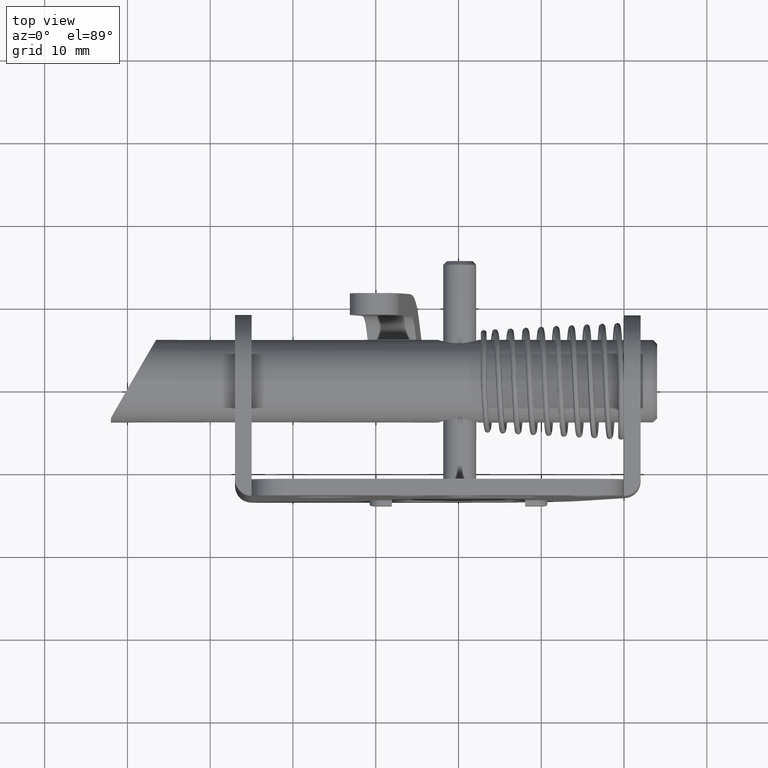
[diagram: clean part render]
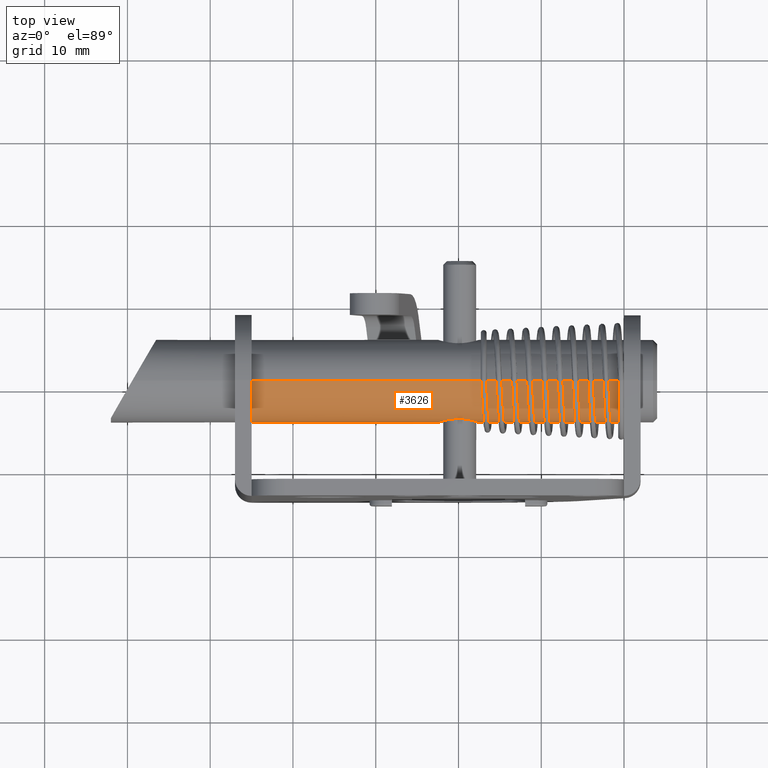
[diagram: same view with one face highlighted and labeled with its STEP entity id]
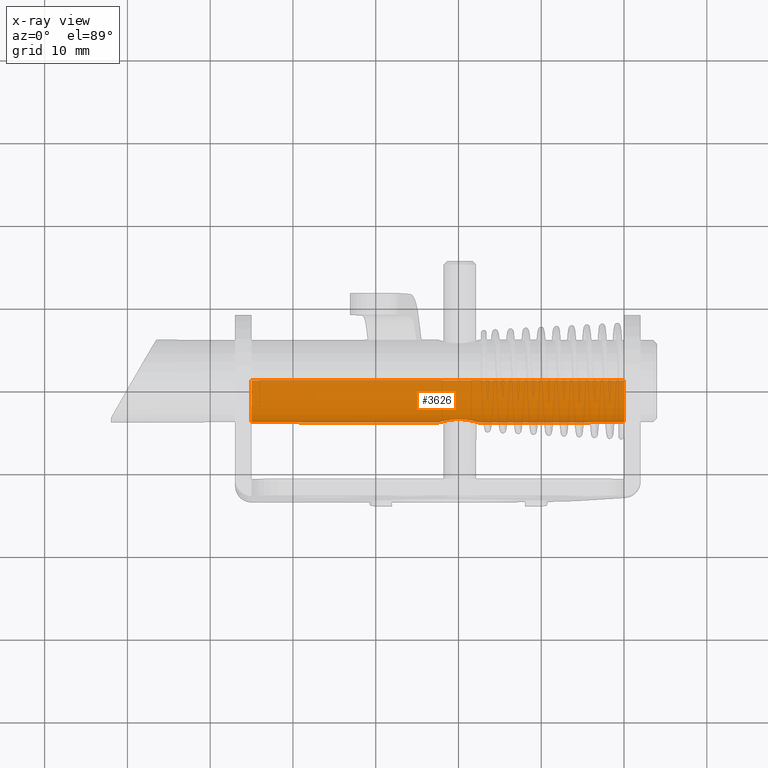
[diagram: x-ray of the same camera — body ghosted, the highlighted face saturated]
A machine part, top view. The second image highlights one B-rep face of the part: STEP entity #3626.
The next image is the same camera in x-ray: the body ghosted, the highlighted face saturated — about 0% of this face is hidden behind the body in this view.
In plain terms, the highlighted cylindrical surface (partial cylindrical patch) has radius 5 mm, axis along (-1, 0, 0).
Its self-contained STEP definition (entity closure, byte-faithful):
#94 = CARTESIAN_POINT ( 'NONE',  ( -17.74631688918006100, -4.820061870947386100, -5.415935148367515800 ) ) ;
#153 = CARTESIAN_POINT ( 'NONE',  ( -17.74107395921798900, -4.821460498712376400, -8.079081099239470400 ) ) ;
#271 = CARTESIAN_POINT ( 'NONE',  ( -21.99031723666563200, -4.947819809472700400, -7.482300710725215100 ) ) ;
#330 = CARTESIAN_POINT ( 'NONE',  ( -20.67925549760133600, -4.634871108716873200, -4.873737304606363500 ) ) ;
#431 = CARTESIAN_POINT ( 'NONE',  ( 937.3499999999170300, -3.469446951953615000E-015, -1.749999999980020200 ) ) ;
#723 = AXIS2_PLACEMENT_3D ( 'NONE', #2186, #4570, #9481 ) ;
#1318 = CARTESIAN_POINT ( 'NONE',  ( -44.64999999999555100, -3.469446951953615000E-015, -1.749999999980020200 ) ) ;
#1331 = CARTESIAN_POINT ( 'NONE',  ( -17.45817417886681600, -4.902034838069751800, -5.756391386171949300 ) ) ;
#1379 = CARTESIAN_POINT ( 'NONE',  ( -18.20853878843011100, -4.707052973569679100, -8.446738241584538900 ) ) ;
#1403 = ORIENTED_EDGE ( 'NONE', *, *, #2205, .F. ) ;
#1453 = CARTESIAN_POINT ( 'NONE',  ( -19.64999999990320100, -4.557189138830396200, -8.807189138811526900 ) ) ;
#1509 = CARTESIAN_POINT ( 'NONE',  ( -22.12902720718897600, -4.992948519260389500, -7.052731196237491700 ) ) ;
#1556 = CARTESIAN_POINT ( 'NONE',  ( -20.24849192812392600, -4.582530358939386000, -4.749742514400360000 ) ) ;
#1635 = CARTESIAN_POINT ( 'NONE',  ( -44.64999999999555100, -3.469446951953615000E-015, -6.749999999980020400 ) ) ;
#1855 = CARTESIAN_POINT ( 'NONE',  ( 0.3490000000000435000, -2.857123552379938100E-015, -11.74999999998002000 ) ) ;
#2186 = CARTESIAN_POINT ( 'NONE',  ( 937.3499999999170300, -3.469446951953615000E-015, -6.749999999980020400 ) ) ;
#2189 = ORIENTED_EDGE ( 'NONE', *, *, #7106, .T. ) ;
#2205 = EDGE_CURVE ( 'NONE', #8472, #8271, #6306, .T. ) ;
#2224 = VECTOR ( 'NONE', #10181, 1000.000000000000000 ) ;
#2542 = CARTESIAN_POINT ( 'NONE',  ( -17.25196189527661500, -4.966470894578490600, -6.153780769870836700 ) ) ;
#2598 = CARTESIAN_POINT ( 'NONE',  ( -18.90587216351781300, -4.597310564733390900, -8.716505052207560700 ) ) ;
#2719 = CARTESIAN_POINT ( 'NONE',  ( -22.15065368192793500, -5.000217893739722400, -6.451326867012229900 ) ) ;
#2746 = AXIS2_PLACEMENT_3D ( 'NONE', #1635, #10151, #2854 ) ;
#2772 = CARTESIAN_POINT ( 'NONE',  ( -19.80078477306376100, -4.557189138830395300, -4.692810861148516600 ) ) ;
#2854 = DIRECTION ( 'NONE',  ( 0.0000000000000000000, 0.0000000000000000000, 1.000000000000000000 ) ) ;
#3450 = VECTOR ( 'NONE', #4181, 1000.000000000000000 ) ;
#3626 = ADVANCED_FACE ( 'NONE', ( #15038, #8188 ), #13900, .T. ) ;
#3708 = CARTESIAN_POINT ( 'NONE',  ( -19.05470197250582500, -4.582248592931688500, -4.749099619040233500 ) ) ;
#3763 = CARTESIAN_POINT ( 'NONE',  ( -17.15059307169493500, -4.999802310153216700, -6.592650336583660400 ) ) ;
#3885 = CARTESIAN_POINT ( 'NONE',  ( -20.25066885560939800, -4.578410832645480400, -8.761913898353798300 ) ) ;
#3943 = CARTESIAN_POINT ( 'NONE',  ( -21.84555497535645000, -4.903157624898649500, -5.761886018203643500 ) ) ;
#4016 = CARTESIAN_POINT ( 'NONE',  ( -44.64999999999555100, -2.857123552379938100E-015, -11.74999999998002000 ) ) ;
#4021 = EDGE_CURVE ( 'NONE', #4578, #9654, #6942, .T. ) ;
#4181 = DIRECTION ( 'NONE',  ( -1.000000000000000000, 0.0000000000000000000, 0.0000000000000000000 ) ) ;
#4570 = DIRECTION ( 'NONE',  ( -1.000000000000000000, 0.0000000000000000000, 0.0000000000000000000 ) ) ;
#4578 = VERTEX_POINT ( 'NONE', #10102 ) ;
#4656 = CARTESIAN_POINT ( 'NONE',  ( 937.3499999999170300, -2.857123552379938100E-015, -11.74999999998002000 ) ) ;
#4936 = CARTESIAN_POINT ( 'NONE',  ( -18.62179065007814700, -4.634711834616607200, -4.873345509117153400 ) ) ;
#4984 = CARTESIAN_POINT ( 'NONE',  ( -17.16984231851297300, -4.993325625076506600, -7.046376336563680500 ) ) ;
#5115 = CARTESIAN_POINT ( 'NONE',  ( -21.08875318657331000, -4.706489151374727300, -8.448238552896612000 ) ) ;
#5159 = CARTESIAN_POINT ( 'NONE',  ( -21.55792046144539500, -4.821192529052545700, -5.419967746238187400 ) ) ;
#5966 = VERTEX_POINT ( 'NONE', #1318 ) ;
#6080 = EDGE_LOOP ( 'NONE', ( #2189, #7512 ) ) ;
#6100 = CARTESIAN_POINT ( 'NONE',  ( 0.3490000000000435000, -3.469446951953615000E-015, -6.749999999980020400 ) ) ;
#6152 = CARTESIAN_POINT ( 'NONE',  ( -18.22099757200187000, -4.706943838674223300, -5.061889553522209300 ) ) ;
#6207 = CARTESIAN_POINT ( 'NONE',  ( -17.30711832807693500, -4.948632370242595600, -7.476917641451622700 ) ) ;
#6306 = LINE ( 'NONE', #4656, #3450 ) ;
#6337 = CARTESIAN_POINT ( 'NONE',  ( -21.55606490351784600, -4.820696910842856100, -8.081803621426079300 ) ) ;
#6393 = CARTESIAN_POINT ( 'NONE',  ( -21.20941249622825700, -4.735264730919364100, -5.141869060770169100 ) ) ;
#6474 = CARTESIAN_POINT ( 'NONE',  ( 0.3490000000000435000, -3.469446951953615000E-015, -1.749999999980020200 ) ) ;
#6942 = B_SPLINE_CURVE_WITH_KNOTS ( 'NONE', 3,
 ( #11020, #9794, #10917, #3708, #12233, #4936, #13464, #6152, #14679, #7383, #94, #8611, #1331, #9846, #2542, #11075, #3763, #12281, #4984, #13517, #6207, #14726, #7435, #153, #8659, #1379, #9899, #2598, #12266, #13136, #14746, #7451 ),
 .UNSPECIFIED., .F., .F.,
 ( 4, 2, 2, 2, 2, 2, 2, 2, 2, 2, 2, 2, 2, 2, 2, 4 ),
 ( 0.005439032659902425100, 0.005889765946220268700, 0.006340499232538112300, 0.006791232518855955900, 0.007241965805173800400, 0.007692699091491643100, 0.008143432377809487600, 0.008594165664127330400, 0.009044898950445174800, 0.009495632236763019300, 0.009946365523080862000, 0.01039709880939870500, 0.01084783209571654900, 0.01174929866835224700, 0.01220003195467008600, 0.01265076524098793100 ),
 .UNSPECIFIED. ) ;
#7106 = EDGE_CURVE ( 'NONE', #9654, #4578, #11917, .T. ) ;
#7126 = ORIENTED_EDGE ( 'NONE', *, *, #11477, .F. ) ;
#7324 = DIRECTION ( 'NONE',  ( 0.0000000000000000000, 0.0000000000000000000, -1.000000000000000000 ) ) ;
#7383 = CARTESIAN_POINT ( 'NONE',  ( -17.85580320279055800, -4.791299641019334000, -5.317472748948321600 ) ) ;
#7435 = CARTESIAN_POINT ( 'NONE',  ( -17.54231912013258900, -4.876911926823566100, -7.858452961119351000 ) ) ;
#7451 = CARTESIAN_POINT ( 'NONE',  ( -19.64999999990320100, -4.557189138830396200, -8.807189138811526900 ) ) ;
#7506 = CARTESIAN_POINT ( 'NONE',  ( -19.95249930347381100, -4.557189138830396200, -8.807189138811526900 ) ) ;
#7511 = CARTESIAN_POINT ( 'NONE',  ( -19.64999999990320100, -4.557189138830396200, -8.807189138811526900 ) ) ;
#7512 = ORIENTED_EDGE ( 'NONE', *, *, #4021, .T. ) ;
#7565 = CARTESIAN_POINT ( 'NONE',  ( -21.84386196362504500, -4.902648917829062600, -7.740564882498010700 ) ) ;
#7610 = CARTESIAN_POINT ( 'NONE',  ( -20.81882606774379600, -4.657706557667204100, -4.930417846738679400 ) ) ;
#8188 = FACE_BOUND ( 'NONE', #6080, .T. ) ;
#8271 = VERTEX_POINT ( 'NONE', #4016 ) ;
#8472 = VERTEX_POINT ( 'NONE', #1855 ) ;
#8611 = CARTESIAN_POINT ( 'NONE',  ( -17.54779444364788100, -4.875323595176216600, -5.634677037611370800 ) ) ;
#8659 = CARTESIAN_POINT ( 'NONE',  ( -17.85079656846900400, -4.792565314335708300, -8.178332873281972200 ) ) ;
#8783 = CARTESIAN_POINT ( 'NONE',  ( -22.04932101030727100, -4.966886644234019600, -7.342636614189536300 ) ) ;
#8835 = CARTESIAN_POINT ( 'NONE',  ( -20.39381917943089900, -4.597282848635884100, -4.783433879528550900 ) ) ;
#8860 = EDGE_LOOP ( 'NONE', ( #1403, #7126, #13989, #11140 ) ) ;
#9481 = DIRECTION ( 'NONE',  ( 0.0000000000000000000, 0.0000000000000000000, 1.000000000000000000 ) ) ;
#9654 = VERTEX_POINT ( 'NONE', #7511 ) ;
#9756 = EDGE_CURVE ( 'NONE', #15209, #5966, #12307, .T. ) ;
#9794 = CARTESIAN_POINT ( 'NONE',  ( -19.49929534758205200, -4.557189138830396200, -4.692810861148514900 ) ) ;
#9814 = CIRCLE ( 'NONE', #2746, 5.000000000000000000 ) ;
#9846 = CARTESIAN_POINT ( 'NONE',  ( -17.31104281318677700, -4.947386726356928200, -6.014766560213830700 ) ) ;
#9899 = CARTESIAN_POINT ( 'NONE',  ( -18.47674817836085400, -4.653859502347157400, -8.580633204255473600 ) ) ;
#10024 = CARTESIAN_POINT ( 'NONE',  ( -22.14966724336197900, -4.999889081287831200, -6.904775098515619500 ) ) ;
#10079 = CARTESIAN_POINT ( 'NONE',  ( -19.95267728609846700, -4.562471746139017600, -4.704403249664411000 ) ) ;
#10102 = CARTESIAN_POINT ( 'NONE',  ( -19.64999999990321200, -4.557189138830404200, -4.692810861148501500 ) ) ;
#10151 = DIRECTION ( 'NONE',  ( 1.000000000000000000, -0.0000000000000000000, -0.0000000000000000000 ) ) ;
#10181 = DIRECTION ( 'NONE',  ( -1.000000000000000000, 0.0000000000000000000, 0.0000000000000000000 ) ) ;
#10917 = CARTESIAN_POINT ( 'NONE',  ( -19.35010922805016500, -4.562349325162571700, -4.704132668734405200 ) ) ;
#11020 = CARTESIAN_POINT ( 'NONE',  ( -19.64999999990321200, -4.557189138830404200, -4.692810861148501500 ) ) ;
#11075 = CARTESIAN_POINT ( 'NONE',  ( -17.17142768260461900, -4.992796133997673600, -6.444553963199154200 ) ) ;
#11140 = ORIENTED_EDGE ( 'NONE', *, *, #15247, .T. ) ;
#11247 = CARTESIAN_POINT ( 'NONE',  ( -22.06522610753999600, -4.970951196194151000, -6.150884028409620900 ) ) ;
#11295 = CARTESIAN_POINT ( 'NONE',  ( -19.64999999990321200, -4.557189138830404200, -4.692810861148501500 ) ) ;
#11477 = EDGE_CURVE ( 'NONE', #15209, #8472, #13839, .T. ) ;
#11917 = B_SPLINE_CURVE_WITH_KNOTS ( 'NONE', 3,
 ( #1453, #7506, #3885, #12410, #5115, #13640, #6337, #14857, #7565, #271, #8783, #1509, #10024, #2719, #11247, #3943, #12456, #5159, #13693, #6393, #14904, #7610, #330, #8835, #1556, #10079, #2772, #11295 ),
 .UNSPECIFIED., .F., .F.,
 ( 4, 2, 2, 2, 2, 2, 2, 2, 2, 2, 2, 2, 2, 4 ),
 ( 0.01265076524098793100, 0.01355271107061642400, 0.01445465690024491800, 0.01490562981505916800, 0.01535660272987341600, 0.01580757564468766500, 0.01625854855950191500, 0.01716049438913041400, 0.01761146730394466700, 0.01806244021875892000, 0.01851341313357317300, 0.01896438604838742600, 0.01941535896320168200, 0.01986633187801593500 ),
 .UNSPECIFIED. ) ;
#12074 = AXIS2_PLACEMENT_3D ( 'NONE', #6100, #14625, #7324 ) ;
#12233 = CARTESIAN_POINT ( 'NONE',  ( -18.90724441570482400, -4.597164456489832000, -4.783158667284993700 ) ) ;
#12266 = CARTESIAN_POINT ( 'NONE',  ( -19.05138104319504000, -4.582541199532523800, -8.750232774677806800 ) ) ;
#12281 = CARTESIAN_POINT ( 'NONE',  ( -17.14943160045369200, -5.000189465747742400, -6.894524613142158900 ) ) ;
#12307 = LINE ( 'NONE', #431, #2224 ) ;
#12410 = CARTESIAN_POINT ( 'NONE',  ( -20.82342837042801200, -4.653877818626904500, -8.580591307794943400 ) ) ;
#12456 = CARTESIAN_POINT ( 'NONE',  ( -21.75653820686634900, -4.876580682195382500, -5.640115299560879900 ) ) ;
#13136 = CARTESIAN_POINT ( 'NONE',  ( -19.34724788131003600, -4.562474594856968000, -8.795590518552330600 ) ) ;
#13464 = CARTESIAN_POINT ( 'NONE',  ( -18.48456611932196800, -4.657132929499095300, -4.928970056006450700 ) ) ;
#13517 = CARTESIAN_POINT ( 'NONE',  ( -17.24827345199676300, -4.967666052583831900, -7.336032184197397200 ) ) ;
#13640 = CARTESIAN_POINT ( 'NONE',  ( -21.44641521066529000, -4.791857814283402700, -8.180685942577568400 ) ) ;
#13693 = CARTESIAN_POINT ( 'NONE',  ( -21.44819010376959800, -4.792305803084269100, -5.320796627727624200 ) ) ;
#13839 = CIRCLE ( 'NONE', #12074, 4.999999999999999100 ) ;
#13900 = CYLINDRICAL_SURFACE ( 'NONE', #723, 5.000000000000000000 ) ;
#13989 = ORIENTED_EDGE ( 'NONE', *, *, #9756, .T. ) ;
#14625 = DIRECTION ( 'NONE',  ( 1.000000000000000000, 0.0000000000000000000, 0.0000000000000000000 ) ) ;
#14679 = CARTESIAN_POINT ( 'NONE',  ( -18.09366179869289600, -4.734584103214088700, -5.139906852186125100 ) ) ;
#14726 = CARTESIAN_POINT ( 'NONE',  ( -17.45343091017505100, -4.903463018711327900, -7.736621516786681400 ) ) ;
#14746 = CARTESIAN_POINT ( 'NONE',  ( -19.49883071597470200, -4.557189138830395300, -8.807189138811523300 ) ) ;
#14857 = CARTESIAN_POINT ( 'NONE',  ( -21.75468067424704100, -4.876041242344758300, -7.862223626441759100 ) ) ;
#14904 = CARTESIAN_POINT ( 'NONE',  ( -21.08326535556120300, -4.707818905697767100, -5.064310010425245400 ) ) ;
#15038 = FACE_OUTER_BOUND ( 'NONE', #8860, .T. ) ;
#15209 = VERTEX_POINT ( 'NONE', #6474 ) ;
#15247 = EDGE_CURVE ( 'NONE', #5966, #8271, #9814, .T. ) ;